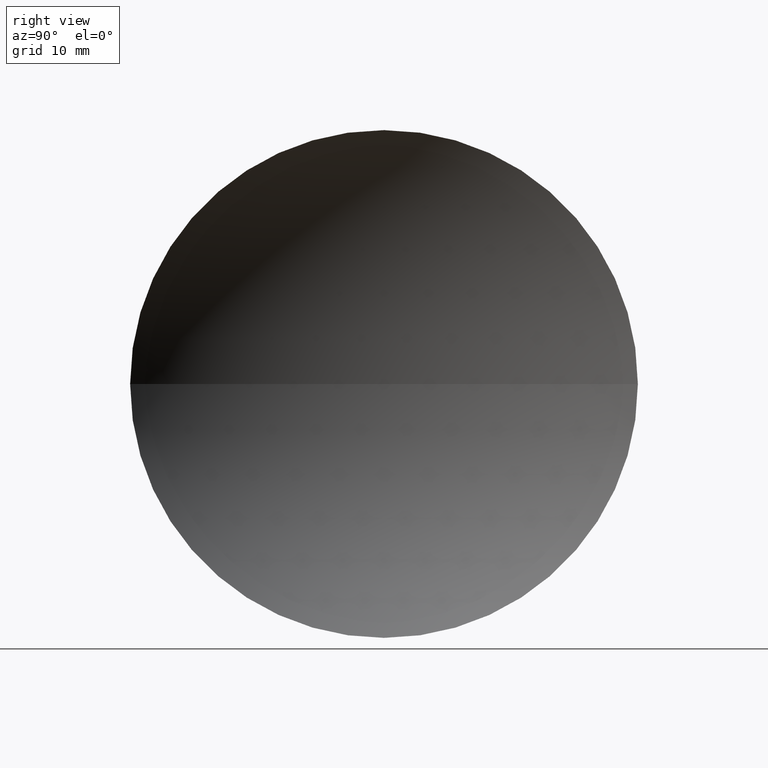
[diagram: clean part render]
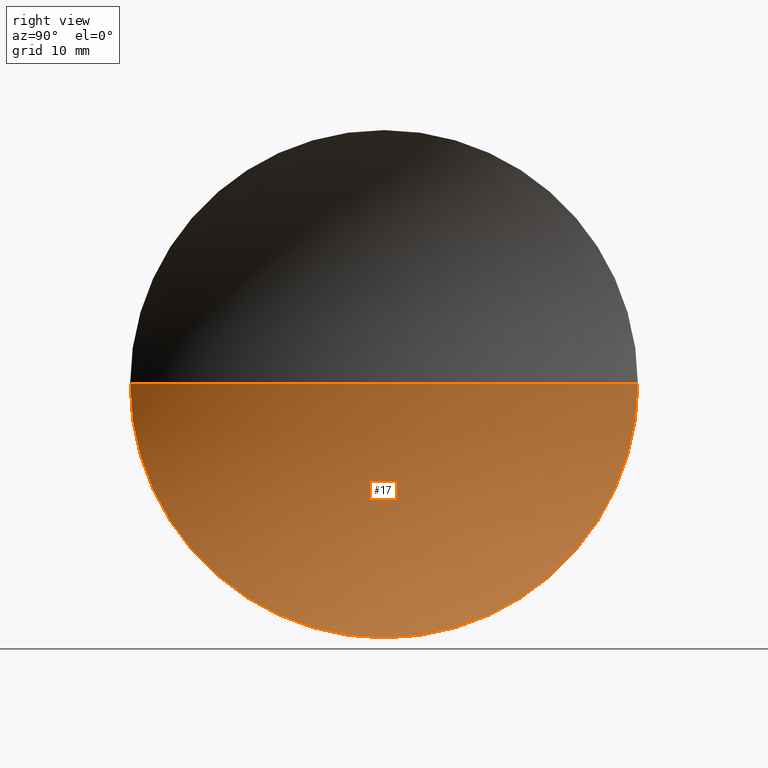
[diagram: same view with one face highlighted and labeled with its STEP entity id]
A machine part, right view. The second image highlights one B-rep face of the part: STEP entity #17.
In plain terms, the highlighted spherical surface has radius 40.6 mm.
Its self-contained STEP definition (entity closure, byte-faithful):
#8 = VERTEX_POINT ( 'NONE', #82 ) ;
#9 = ORIENTED_EDGE ( 'NONE', *, *, #10, .T. ) ;
#10 = EDGE_CURVE ( 'NONE', #8, #11, #81, .T. ) ;
#11 = VERTEX_POINT ( 'NONE', #76 ) ;
#12 = ORIENTED_EDGE ( 'NONE', *, *, #13, .T. ) ;
#13 = EDGE_CURVE ( 'NONE', #11, #58, #74, .T. ) ;
#17 = ADVANCED_FACE ( 'NONE', ( #104 ), #148, .F. ) ;
#18 = EDGE_LOOP ( 'NONE', ( #55, #59, #9, #12 ) ) ;
#55 = ORIENTED_EDGE ( 'NONE', *, *, #56, .F. ) ;
#56 = EDGE_CURVE ( 'NONE', #57, #58, #265, .T. ) ;
#57 = VERTEX_POINT ( 'NONE', #260 ) ;
#58 = VERTEX_POINT ( 'NONE', #259 ) ;
#59 = ORIENTED_EDGE ( 'NONE', *, *, #60, .T. ) ;
#60 = EDGE_CURVE ( 'NONE', #57, #8, #257, .T. ) ;
#70 = DIRECTION ( 'NONE',  ( 0.0000000000000000000, 0.0000000000000000000, -1.000000000000000000 ) ) ;
#71 = DIRECTION ( 'NONE',  ( 1.000000000000000000, 0.0000000000000000000, 0.0000000000000000000 ) ) ;
#72 = CARTESIAN_POINT ( 'NONE',  ( -2.977472932124407100, 1.358932922870714100, 0.8722530675037537500 ) ) ;
#73 = AXIS2_PLACEMENT_3D ( 'NONE', #72, #71, #70 ) ;
#74 = CIRCLE ( 'NONE', #73, 1.000000000000000000 ) ;
#76 = CARTESIAN_POINT ( 'NONE',  ( -2.977472932124407100, 1.358932922870714100, -0.1277469324962462700 ) ) ;
#77 = DIRECTION ( 'NONE',  ( 0.0000000000000000000, 0.0000000000000000000, -1.000000000000000000 ) ) ;
#78 = DIRECTION ( 'NONE',  ( 1.000000000000000000, 0.0000000000000000000, 0.0000000000000000000 ) ) ;
#79 = CARTESIAN_POINT ( 'NONE',  ( -2.977472932124407100, 1.358932922870714100, 0.8722530675037537500 ) ) ;
#80 = AXIS2_PLACEMENT_3D ( 'NONE', #79, #78, #77 ) ;
#81 = CIRCLE ( 'NONE', #80, 1.000000000000000000 ) ;
#82 = CARTESIAN_POINT ( 'NONE',  ( -2.977472932124407100, 0.3589329228707138800, 0.8722530675037538600 ) ) ;
#104 = FACE_OUTER_BOUND ( 'NONE', #18, .T. ) ;
#144 = DIRECTION ( 'NONE',  ( 0.0000000000000000000, 1.000000000000000000, 0.0000000000000000000 ) ) ;
#145 = DIRECTION ( 'NONE',  ( 0.0000000000000000000, 0.0000000000000000000, 1.000000000000000000 ) ) ;
#146 = CARTESIAN_POINT ( 'NONE',  ( -1.730491332450129400, 1.358932922870714100, 0.8722530675037537500 ) ) ;
#147 = AXIS2_PLACEMENT_3D ( 'NONE', #146, #145, #144 ) ;
#148 = SPHERICAL_SURFACE ( 'NONE', #147, 1.598425196850394400 ) ;
#253 = DIRECTION ( 'NONE',  ( 0.0000000000000000000, -1.000000000000000000, 8.545435842250277300E-017 ) ) ;
#254 = DIRECTION ( 'NONE',  ( 0.0000000000000000000, 1.224606353822377300E-016, 1.000000000000000000 ) ) ;
#255 = CARTESIAN_POINT ( 'NONE',  ( -1.730491332450129400, 1.358932922870714100, 0.8722530675037537500 ) ) ;
#256 = AXIS2_PLACEMENT_3D ( 'NONE', #255, #254, #253 ) ;
#257 = CIRCLE ( 'NONE', #256, 1.598425196850394400 ) ;
#259 = CARTESIAN_POINT ( 'NONE',  ( -2.977472932124407100, 2.358932922870714300, 0.8722530675037537500 ) ) ;
#260 = CARTESIAN_POINT ( 'NONE',  ( -3.328916529300524300, 1.358932922870714100, 0.8722530675037537500 ) ) ;
#261 = DIRECTION ( 'NONE',  ( -1.000000000000000000, 0.0000000000000000000, 0.0000000000000000000 ) ) ;
#262 = DIRECTION ( 'NONE',  ( 0.0000000000000000000, 0.0000000000000000000, -1.000000000000000000 ) ) ;
#263 = CARTESIAN_POINT ( 'NONE',  ( -1.730491332450129400, 1.358932922870714100, 0.8722530675037537500 ) ) ;
#264 = AXIS2_PLACEMENT_3D ( 'NONE', #263, #262, #261 ) ;
#265 = CIRCLE ( 'NONE', #264, 1.598425196850394600 ) ;